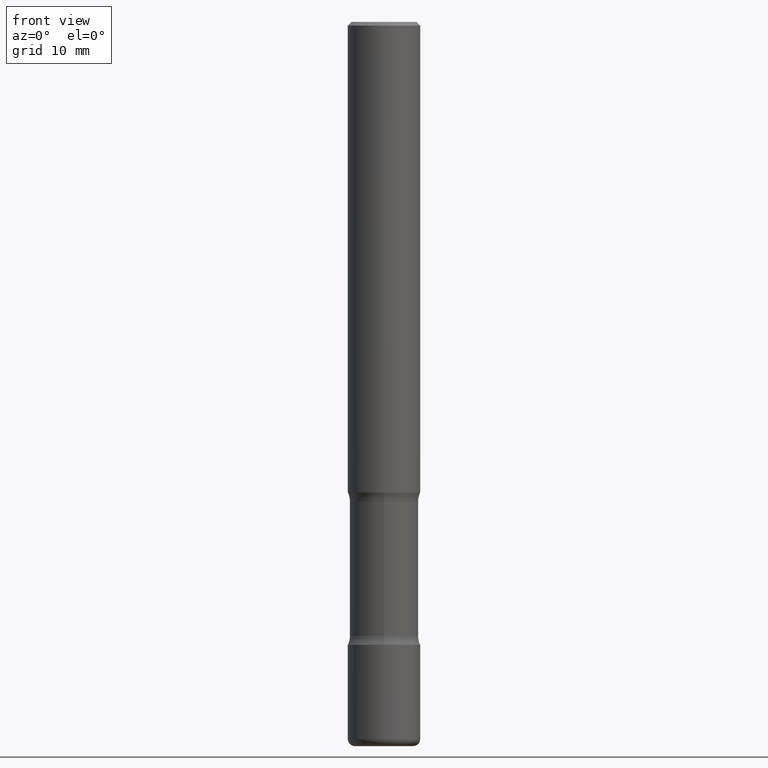
[diagram: clean part render]
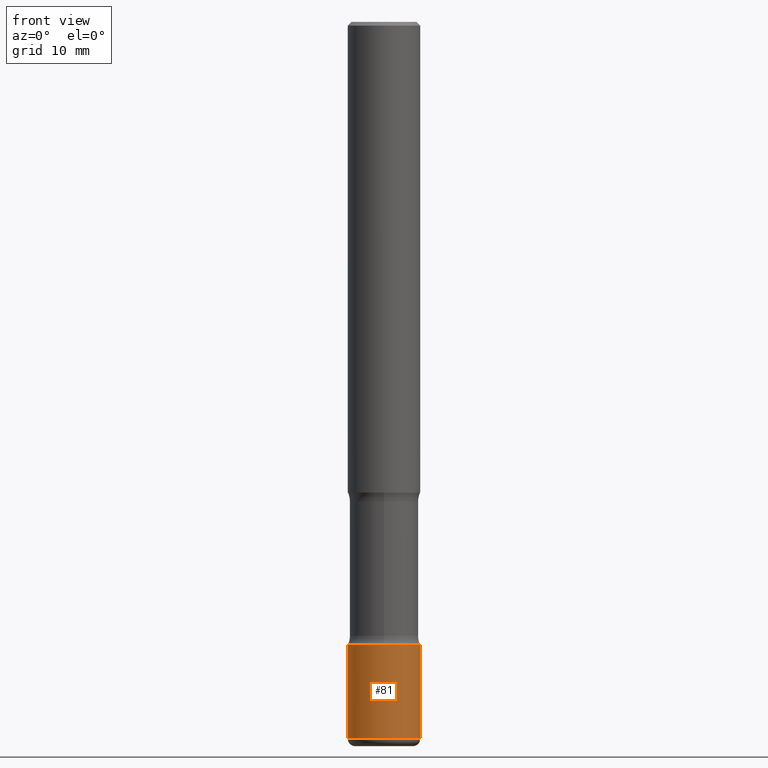
[diagram: same view with one face highlighted and labeled with its STEP entity id]
A machine part, front view. The second image highlights one B-rep face of the part: STEP entity #81.
In plain terms, the highlighted cylindrical surface (edge-blend (fillet) strip) has radius 5 mm, axis along (-0, 0, 1).
Its self-contained STEP definition (entity closure, byte-faithful):
#3 = AXIS2_PLACEMENT_3D ( 'NONE', #538, #10, #103 ) ;
#10 = DIRECTION ( 'NONE',  ( -2.445468806185136597E-29, 3.491481338843145583E-15, 1.000000000000000000 ) ) ;
#14 = LINE ( 'NONE', #466, #460 ) ;
#57 = CARTESIAN_POINT ( 'NONE',  ( 0.1968500000000001082, -1.319605372015766376E-14, -3.385799999999999699 ) ) ;
#80 = CARTESIAN_POINT ( 'NONE',  ( -0.1968500000000001082, -1.131622421632132460E-14, -3.385799999999999699 ) ) ;
#81 = ADVANCED_FACE ( 'NONE', ( #226 ), #315, .T. ) ;
#84 = CARTESIAN_POINT ( 'NONE',  ( -0.1968500000000000527, -1.220969429093128562E-14, -3.897600000000000176 ) ) ;
#100 = ORIENTED_EDGE ( 'NONE', *, *, #473, .F. ) ;
#103 = DIRECTION ( 'NONE',  ( 1.000000000000000000, -6.982962677686266711E-15, 4.876176775795935793E-29 ) ) ;
#110 = LINE ( 'NONE', #279, #555 ) ;
#118 = EDGE_CURVE ( 'NONE', #386, #126, #290, .T. ) ;
#120 = DIRECTION ( 'NONE',  ( -2.445468806185136877E-29, 3.491481338843145188E-15, 1.000000000000000000 ) ) ;
#126 = VERTEX_POINT ( 'NONE', #148 ) ;
#127 = DIRECTION ( 'NONE',  ( 1.000000000000000000, -6.982962677686265133E-15, 0.000000000000000000 ) ) ;
#143 = AXIS2_PLACEMENT_3D ( 'NONE', #165, #383, #127 ) ;
#148 = CARTESIAN_POINT ( 'NONE',  ( 0.1968500000000000527, -1.498299386937758423E-14, -3.897600000000000176 ) ) ;
#154 = DIRECTION ( 'NONE',  ( -2.445468806185136877E-29, 3.491481338843145188E-15, 1.000000000000000000 ) ) ;
#165 = CARTESIAN_POINT ( 'NONE',  ( 8.279868283981634472E-29, -1.182145751705512057E-14, -3.385799999999999699 ) ) ;
#185 = DIRECTION ( 'NONE',  ( -2.445468806185136597E-29, 3.491481338843145583E-15, 1.000000000000000000 ) ) ;
#226 = FACE_OUTER_BOUND ( 'NONE', #499, .T. ) ;
#231 = CIRCLE ( 'NONE', #143, 0.1968500000000001082 ) ;
#237 = EDGE_CURVE ( 'NONE', #126, #557, #14, .T. ) ;
#279 = CARTESIAN_POINT ( 'NONE',  ( -0.1968500000000001082, 1.398703375343757985E-15, -9.682923725166787881E-30 ) ) ;
#290 = CIRCLE ( 'NONE', #486, 0.1968500000000001360 ) ;
#311 = CARTESIAN_POINT ( 'NONE',  ( 9.531459218987189074E-29, -1.360839766627504420E-14, -3.897600000000000176 ) ) ;
#313 = ORIENTED_EDGE ( 'NONE', *, *, #118, .T. ) ;
#315 = CYLINDRICAL_SURFACE ( 'NONE', #3, 0.1968500000000001082 ) ;
#319 = ORIENTED_EDGE ( 'NONE', *, *, #326, .F. ) ;
#326 = EDGE_CURVE ( 'NONE', #386, #520, #110, .T. ) ;
#358 = DIRECTION ( 'NONE',  ( 1.000000000000000000, -6.982962677686263555E-15, 0.000000000000000000 ) ) ;
#383 = DIRECTION ( 'NONE',  ( -2.445468806185136597E-29, 3.491481338843145583E-15, 1.000000000000000000 ) ) ;
#386 = VERTEX_POINT ( 'NONE', #84 ) ;
#460 = VECTOR ( 'NONE', #154, 39.37007874015748143 ) ;
#466 = CARTESIAN_POINT ( 'NONE',  ( 0.1968500000000001082, -1.374596203102542397E-15, 9.598753983154305062E-30 ) ) ;
#473 = EDGE_CURVE ( 'NONE', #520, #557, #231, .T. ) ;
#486 = AXIS2_PLACEMENT_3D ( 'NONE', #311, #185, #358 ) ;
#499 = EDGE_LOOP ( 'NONE', ( #319, #313, #515, #100 ) ) ;
#515 = ORIENTED_EDGE ( 'NONE', *, *, #237, .T. ) ;
#520 = VERTEX_POINT ( 'NONE', #80 ) ;
#538 = CARTESIAN_POINT ( 'NONE',  ( 0.000000000000000000, 0.000000000000000000, 0.000000000000000000 ) ) ;
#555 = VECTOR ( 'NONE', #120, 39.37007874015748143 ) ;
#557 = VERTEX_POINT ( 'NONE', #57 ) ;